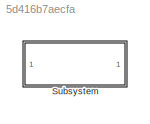
MODEL slx_5d416b7aecfa
KIND model
CONFIG AbsTol = auto
CONFIG FixedStep = auto
CONFIG MaxStep = auto
CONFIG MinStep = auto
CONFIG RelTol = 1e-3
CONFIG SampleTimeConstraint = Unconstrained
CONFIG Solver = ode45
CONFIG SolverMode = Auto
CONFIG SolverName = ode45
CONFIG StartTime = 0.0
CONFIG StopTime = 10.0
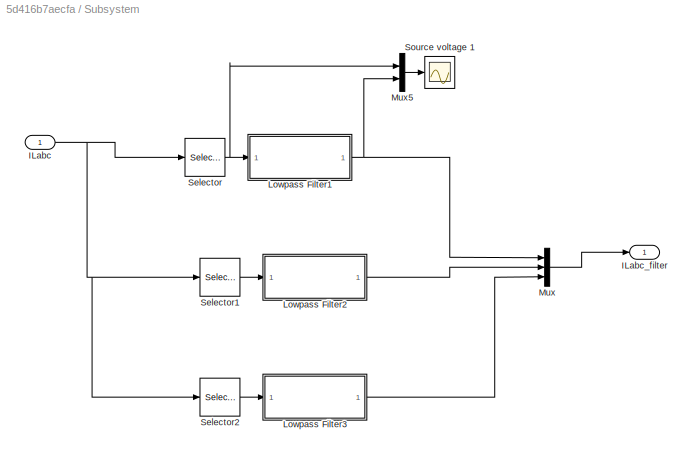
BLOCK [SubSystem] Subsystem
  Ports = [1, 1]
  RequestExecContextInheritance = off
BLOCK [Inport] Subsystem/ILabc
  IconDisplay = Port number
BLOCK [Outport] Subsystem/ILabc_filter 
  IconDisplay = Port number
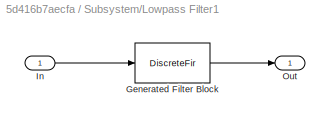
BLOCK [SubSystem] Subsystem/Lowpass Filter1
  CopyFcn = fdesignblkfcn(gcbh, {'CopyFcn'});
  DialogController = fdesignblkfcn
  InitFcn = fdesignblkfcn(gcbh, {'InitFcn'});
  Ports = [1, 1]
  RequestExecContextInheritance = off
  UserDataPersistent = on
BLOCK [DiscreteFir] Subsystem/Lowpass Filter1/Generated Filter Block
  Coefficients = [0.00066997061007102146 0.00039594753768134921 0.00050923833364043838 0.00064121023987765411 0.00079280782867979847 0.00096565195948745096 0.0011612249134648441 0.0013813034112891537 0.0016258363797603168 0.00189586775152624 0.0021937967665738986 0.0025182856156895374 0.0028712153581181305 0.0032524075930221406 0.0036619213302328162 0.0040995922875411367 0.0045647115037281407 0.0050571693774376092...<+1690ch>  <repeated x3 — deduplicated; at blocks: Generated Filter Block>
  InputProcessing = Columns as channels (frame based)
  Ports = [1, 1]
  SampleTime = Ts
  Tag = BlockMethodSubSystem
BLOCK [Inport] Subsystem/Lowpass Filter1/In
  IconDisplay = Port number
BLOCK [Outport] Subsystem/Lowpass Filter1/Out
  IconDisplay = Port number
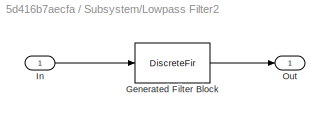
BLOCK [SubSystem] Subsystem/Lowpass Filter2
  CopyFcn = fdesignblkfcn(gcbh, {'CopyFcn'});
  DialogController = fdesignblkfcn
  InitFcn = fdesignblkfcn(gcbh, {'InitFcn'});
  Ports = [1, 1]
  RequestExecContextInheritance = off
  UserDataPersistent = on
BLOCK [DiscreteFir] Subsystem/Lowpass Filter2/Generated Filter Block
  InputProcessing = Columns as channels (frame based)
  Ports = [1, 1]
  SampleTime = Ts
  Tag = BlockMethodSubSystem
BLOCK [Inport] Subsystem/Lowpass Filter2/In
  IconDisplay = Port number
BLOCK [Outport] Subsystem/Lowpass Filter2/Out
  IconDisplay = Port number
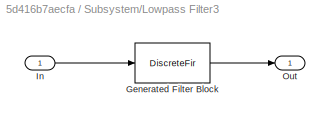
BLOCK [SubSystem] Subsystem/Lowpass Filter3
  CopyFcn = fdesignblkfcn(gcbh, {'CopyFcn'});
  DialogController = fdesignblkfcn
  InitFcn = fdesignblkfcn(gcbh, {'InitFcn'});
  Ports = [1, 1]
  RequestExecContextInheritance = off
  UserDataPersistent = on
BLOCK [DiscreteFir] Subsystem/Lowpass Filter3/Generated Filter Block
  InputProcessing = Columns as channels (frame based)
  Ports = [1, 1]
  SampleTime = Ts
  Tag = BlockMethodSubSystem
BLOCK [Inport] Subsystem/Lowpass Filter3/In
  IconDisplay = Port number
BLOCK [Outport] Subsystem/Lowpass Filter3/Out
  IconDisplay = Port number
BLOCK [Mux] Subsystem/Mux
  DisplayOption = bar
  Inputs = 3
  Ports = [3, 1]
BLOCK [Mux] Subsystem/Mux5
  DisplayOption = bar
  Inputs = 2
  Ports = [2, 1]
BLOCK [Selector] Subsystem/Selector
  Indices = [1 ]
  InputPortWidth = 3
  Ports = [1, 1]
BLOCK [Selector] Subsystem/Selector1
  Indices = [2 ]
  InputPortWidth = 3
  Ports = [1, 1]
BLOCK [Selector] Subsystem/Selector2
  Indices = [3 ]
  InputPortWidth = 3
  Ports = [1, 1]
BLOCK [Scope] Subsystem/Source voltage 1
  Floating = off
  LimitDataPoints = off
  NumInputPorts = 1
  Ports = [1]
  SaveName = Uabc3
  TimeRange = 0.06239913932221623
  YMax = 20
  YMin = -20
NET Subsystem/ILabc:1 -> Subsystem/Selector1:1, Subsystem/Selector2:1, Subsystem/Selector:1
NET Subsystem/Lowpass Filter1:1 -> Subsystem/Mux5:2, Subsystem/Mux:1
LINE Subsystem/Lowpass Filter2:1 -> Subsystem/Mux:2
LINE Subsystem/Lowpass Filter3:1 -> Subsystem/Mux:3
LINE Subsystem/Mux5:1 -> Subsystem/Source voltage 1:1
LINE Subsystem/Mux:1 -> Subsystem/ILabc_filter :1
LINE Subsystem/Selector1:1 -> Subsystem/Lowpass Filter2:1
LINE Subsystem/Selector2:1 -> Subsystem/Lowpass Filter3:1
NET Subsystem/Selector:1 -> Subsystem/Lowpass Filter1:1, Subsystem/Mux5:1
note: NET lines group one-source signal fan-out (src -> all destinations, sorted); 1:1 wires keep LINE
